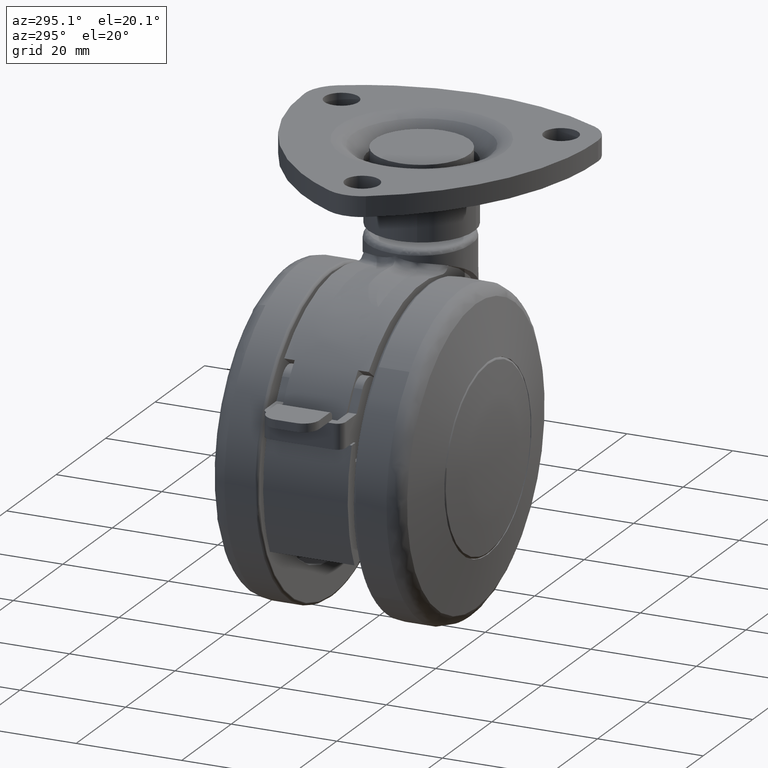
[diagram: clean part render]
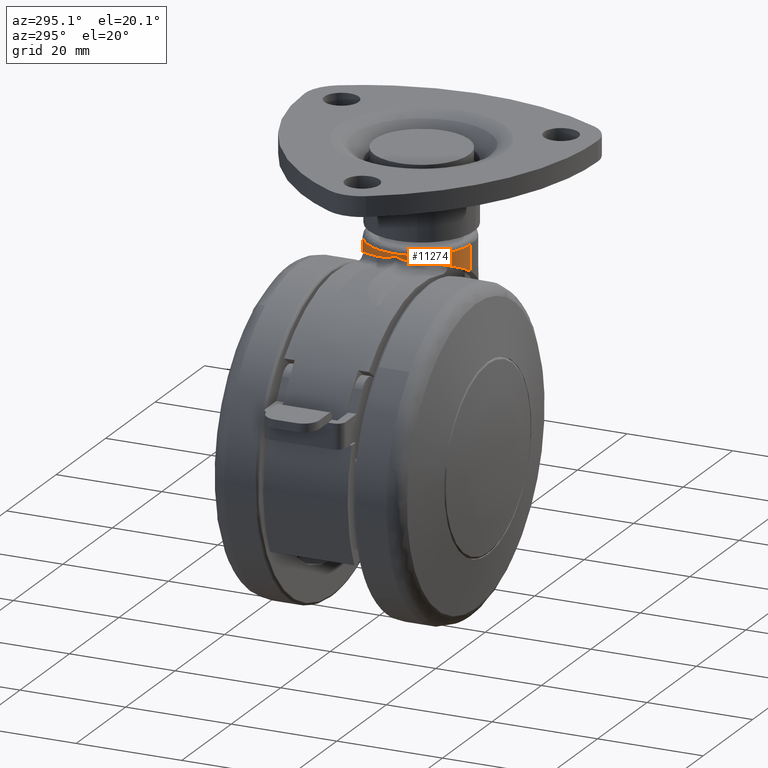
[diagram: same view with one face highlighted and labeled with its STEP entity id]
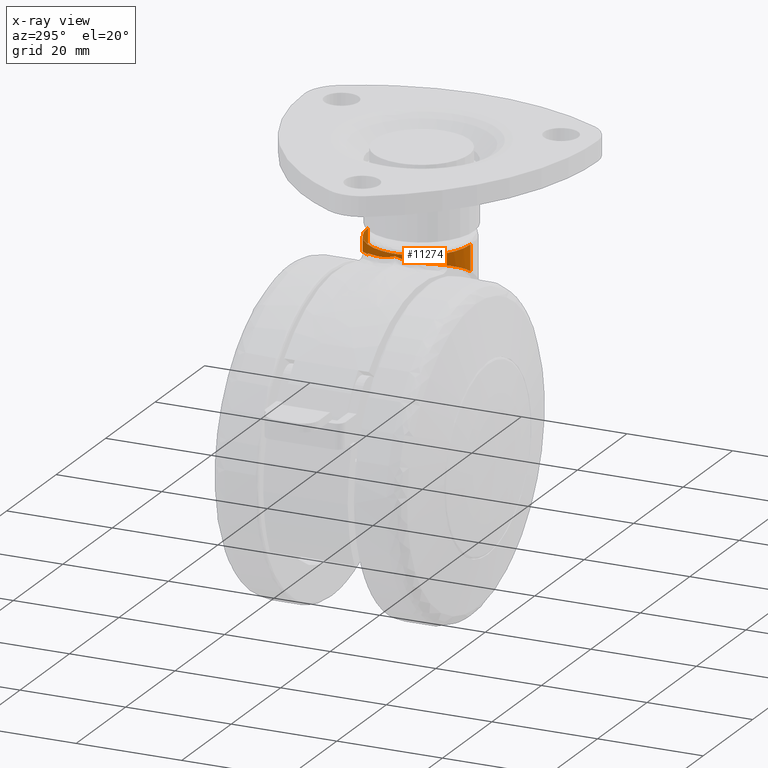
[diagram: x-ray of the same camera — body ghosted, the highlighted face saturated]
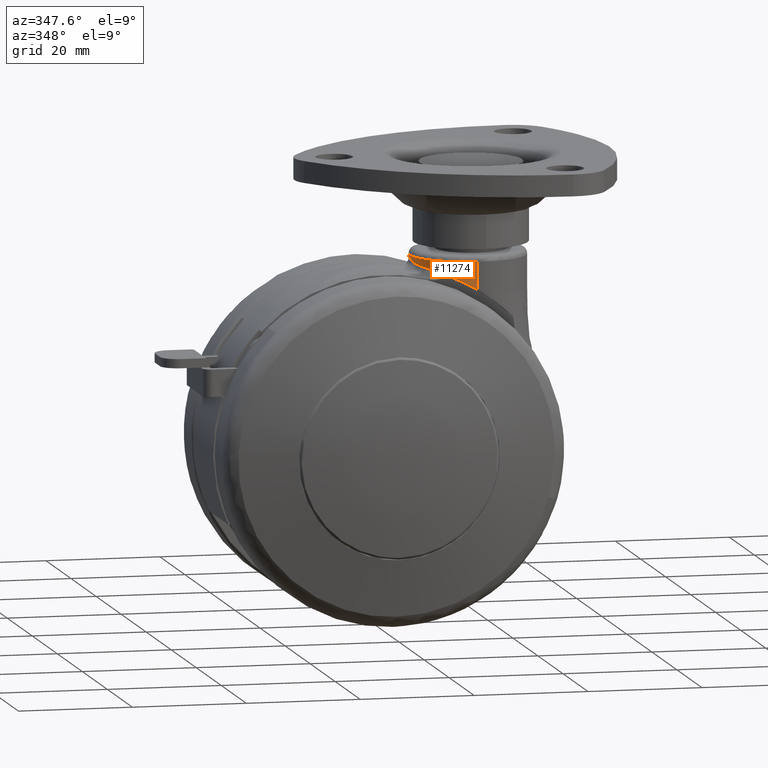
[diagram: same view with one face highlighted and labeled with its STEP entity id]
A machine part, auxiliary view. The second image highlights one B-rep face of the part: STEP entity #11274.
The next image is the same camera in x-ray: the body ghosted, the highlighted face saturated — about 0% of this face is hidden behind the body in this view.
A second angle (auxiliary view) of the same face is appended — the face is thin or edge-on in the first view.
In plain terms, the highlighted face is a freeform B-spline surface patch.
Its self-contained STEP definition (entity closure, byte-faithful):
#8522=CARTESIAN_POINT('',(6.299999999999910,1.679479E-014,31.569413359554350));
#8523=VERTEX_POINT('',#8522);
#8565=CARTESIAN_POINT('',(6.316067869316409,-0.558084660527254,31.406394739784599));
#8566=VERTEX_POINT('',#8565);
#8582=CARTESIAN_POINT('',(6.299999999999910,1.679479E-014,31.569413359554350));
#8583=CARTESIAN_POINT('',(6.299999999999910,-0.188094773179196,31.521620634496660));
#8584=CARTESIAN_POINT('',(6.305466412268796,-0.374127283095578,31.467306667285829));
#8585=CARTESIAN_POINT('',(6.316067869316409,-0.558084660527254,31.406394739784599));
#8586=QUASI_UNIFORM_CURVE('',3,(#8582,#8583,#8584,#8585),.UNSPECIFIED.,.F.,.U.);
#8587=EDGE_CURVE('',#8523,#8566,#8586,.T.);
#8614=CARTESIAN_POINT('',(7.078395394815019,-3.807226190909055,30.742212793457249));
#8615=VERTEX_POINT('',#8614);
#8631=CARTESIAN_POINT('',(6.316067869316409,-0.558084660527256,31.406394739784648));
#8632=CARTESIAN_POINT('',(6.347524740934596,-1.103926951742255,31.225655556970700));
#8633=CARTESIAN_POINT('',(6.425002353692325,-1.649283166289073,31.084029902050521));
#8634=CARTESIAN_POINT('',(6.613973821504918,-2.463775821570510,30.921079241300799));
#8635=CARTESIAN_POINT('',(6.689136250726343,-2.734675017040373,30.875015703261301));
#8636=CARTESIAN_POINT('',(6.821073418759280,-3.139659952571872,30.817063348780060));
#8637=CARTESIAN_POINT('',(6.868341959008222,-3.274640668352423,30.799580002498349));
#8638=CARTESIAN_POINT('',(6.968843395014154,-3.542408850014060,30.768274088124318));
#8639=CARTESIAN_POINT('',(7.022104685965641,-3.675318229018368,30.754427989970360));
#8640=CARTESIAN_POINT('',(7.078395394815011,-3.807226190909054,30.742212793457199));
#8641=B_SPLINE_CURVE_WITH_KNOTS('',3,(#8631,#8632,#8633,#8634,#8635,#8636,#8637,#8638,#8639,#8640),.UNSPECIFIED.,.F.,.U.,(4,2,2,2,4),(0.0,0.500000000000000,0.750000000000000,0.875000000000000,1.0),.UNSPECIFIED.);
#8642=EDGE_CURVE('',#8566,#8615,#8641,.T.);
#8677=CARTESIAN_POINT('',(6.316067869316409,0.558084660527296,31.406394739784648));
#8678=VERTEX_POINT('',#8677);
#8704=CARTESIAN_POINT('',(6.316067869316409,0.558084660527294,31.406394739784599));
#8705=CARTESIAN_POINT('',(6.305466412268795,0.374127283095609,31.467306667285829));
#8706=CARTESIAN_POINT('',(6.299999999999904,0.188094773178900,31.521620634495711));
#8707=CARTESIAN_POINT('',(6.299999999999910,1.679479E-014,31.569413359554350));
#8708=QUASI_UNIFORM_CURVE('',3,(#8704,#8705,#8706,#8707),.UNSPECIFIED.,.F.,.U.);
#8709=EDGE_CURVE('',#8678,#8523,#8708,.T.);
#8782=CARTESIAN_POINT('',(12.009282200672740,-8.841050358760171,29.120905566699051));
#8783=VERTEX_POINT('',#8782);
#8793=CARTESIAN_POINT('',(7.078395394815019,-3.807226190909055,30.742212793457249));
#8794=CARTESIAN_POINT('',(7.200229000523692,-4.092723086352845,30.715774657110170));
#8795=CARTESIAN_POINT('',(7.335169638983992,-4.371054627148991,30.685537584982161));
#8796=CARTESIAN_POINT('',(7.556903319707634,-4.777862428106570,30.633513483824920));
#8797=CARTESIAN_POINT('',(7.634098063588400,-4.911775108276372,30.615043381764469));
#8798=CARTESIAN_POINT('',(7.794699785576560,-5.175606081911697,30.575731895747740));
#8799=CARTESIAN_POINT('',(7.877724939201735,-5.304908145154446,30.554984079706479));
#8800=CARTESIAN_POINT('',(8.306039002457849,-5.938636681677326,30.445437280446001));
#8801=CARTESIAN_POINT('',(8.690597099430990,-6.405014439057752,30.339385529859630));
#8802=CARTESIAN_POINT('',(9.325872978437253,-7.045312177745724,30.144043538839419));
#8803=CARTESIAN_POINT('',(9.547429481262157,-7.248808549942805,30.072852855530911));
#8804=CARTESIAN_POINT('',(10.010044703248781,-7.635530579856953,29.916402780736892));
#8805=CARTESIAN_POINT('',(10.247583309709791,-7.815803188336362,29.832319509954839));
#8806=CARTESIAN_POINT('',(10.976185431168989,-8.318629466934688,29.561401880904310));
#8807=CARTESIAN_POINT('',(11.483524580595519,-8.603731238584016,29.355832760660459));
#8808=CARTESIAN_POINT('',(12.009282200672720,-8.841050358760171,29.120905566699051));
#8809=B_SPLINE_CURVE_WITH_KNOTS('',3,(#8793,#8794,#8795,#8796,#8797,#8798,#8799,#8800,#8801,#8802,#8803,#8804,#8805,#8806,#8807,#8808),.UNSPECIFIED.,.F.,.U.,(4,2,2,2,2,2,2,4),(0.0,0.125000000000000,0.187500000000000,0.250000000000000,0.500000000000000,0.625000000000000,0.750000000000000,1.0),.UNSPECIFIED.);
#8810=EDGE_CURVE('',#8615,#8783,#8809,.T.);
#8884=CARTESIAN_POINT('',(7.078395394815040,3.807226190909105,30.742212793457352));
#8885=VERTEX_POINT('',#8884);
#8913=CARTESIAN_POINT('',(7.078395394815040,3.807226190909105,30.742212793457352));
#8914=CARTESIAN_POINT('',(6.853314705460942,3.279786839006485,30.791055753654010));
#8915=CARTESIAN_POINT('',(6.679335788375561,2.743356895179444,30.865471713381002));
#8916=CARTESIAN_POINT('',(6.489641272198040,1.928930783767886,31.027922829943812));
#8917=CARTESIAN_POINT('',(6.438344752547978,1.655805530375691,31.090518405442300));
#8918=CARTESIAN_POINT('',(6.379096543692677,1.243966414659654,31.198555809977250));
#8919=CARTESIAN_POINT('',(6.362282539046143,1.106096727356603,31.236998985255180));
#8920=CARTESIAN_POINT('',(6.334714684319635,0.831449092811673,31.318313647878949));
#8921=CARTESIAN_POINT('',(6.323932102011982,0.694545489987199,31.361209859097251));
#8922=CARTESIAN_POINT('',(6.316067869316350,0.558084660527310,31.406394739784648));
#8923=B_SPLINE_CURVE_WITH_KNOTS('',3,(#8913,#8914,#8915,#8916,#8917,#8918,#8919,#8920,#8921,#8922),.UNSPECIFIED.,.F.,.U.,(4,2,2,2,4),(0.0,0.500000000000001,0.750000000000001,0.875000000000000,1.0),.UNSPECIFIED.);
#8924=EDGE_CURVE('',#8885,#8678,#8923,.T.);
#9048=CARTESIAN_POINT('',(12.009282200672541,8.841050358760080,29.120905566699150));
#9049=VERTEX_POINT('',#9048);
#9050=CARTESIAN_POINT('',(12.009282200672541,8.841050358760080,29.120905566699150));
#9051=CARTESIAN_POINT('',(11.483524580595359,8.603731238583922,29.355832760660562));
#9052=CARTESIAN_POINT('',(10.976185431168830,8.318629466934594,29.561401880904370));
#9053=CARTESIAN_POINT('',(10.247583309709670,7.815803188336270,29.832319509954878));
#9054=CARTESIAN_POINT('',(10.010044703248671,7.635530579856864,29.916402780736949));
#9055=CARTESIAN_POINT('',(9.547429481262068,7.248808549942724,30.072852855530929));
#9056=CARTESIAN_POINT('',(9.325872978437175,7.045312177745648,30.144043538839441));
#9057=CARTESIAN_POINT('',(8.690597099430946,6.405014439057698,30.339385529859651));
#9058=CARTESIAN_POINT('',(8.306039002457817,5.938636681677287,30.445437280446011));
#9059=CARTESIAN_POINT('',(7.877724939201722,5.304908145154433,30.554984079706490));
#9060=CARTESIAN_POINT('',(7.794699785576547,5.175606081911684,30.575731895747740));
#9061=CARTESIAN_POINT('',(7.634098063588396,4.911775108276370,30.615043381764469));
#9062=CARTESIAN_POINT('',(7.556903319707637,4.777862428106571,30.633513483824931));
#9063=CARTESIAN_POINT('',(7.335169638983999,4.371054627149007,30.685537584982161));
#9064=CARTESIAN_POINT('',(7.200229000523712,4.092723086352876,30.715774657110170));
#9065=CARTESIAN_POINT('',(7.078395394815040,3.807226190909105,30.742212793457352));
#9066=B_SPLINE_CURVE_WITH_KNOTS('',3,(#9050,#9051,#9052,#9053,#9054,#9055,#9056,#9057,#9058,#9059,#9060,#9061,#9062,#9063,#9064,#9065),.UNSPECIFIED.,.F.,.U.,(4,2,2,2,2,2,2,4),(0.0,0.250000000000000,0.375000000000000,0.500000000000000,0.750000000000000,0.812500000000000,0.875000000000000,1.0),.UNSPECIFIED.);
#9067=EDGE_CURVE('',#9049,#8885,#9066,.T.);
#10649=CARTESIAN_POINT('',(16.0,9.700000000000001,27.133927102430349));
#10650=VERTEX_POINT('',#10649);
#10651=CARTESIAN_POINT('',(12.009282200672560,8.841050358760043,29.120905566699150));
#10652=CARTESIAN_POINT('',(12.335479715066571,8.988291034241406,28.986383719686419));
#10653=CARTESIAN_POINT('',(12.664712985234090,9.115236013150181,28.844195471246511));
#10654=CARTESIAN_POINT('',(13.328041232835959,9.331254116830777,28.543753857501969));
#10655=CARTESIAN_POINT('',(13.662139654837420,9.420317845237275,28.385501410894619));
#10656=CARTESIAN_POINT('',(14.166270908845870,9.526643293676424,28.135421733310359));
#10657=CARTESIAN_POINT('',(14.334948356119559,9.557552458681046,28.049874106273890));
#10658=CARTESIAN_POINT('',(14.672652969203570,9.610273452772562,27.874709623523451));
#10659=CARTESIAN_POINT('',(14.840634543995920,9.631930941055709,27.785638259596460));
#10660=CARTESIAN_POINT('',(15.341972130579610,9.683485270213062,27.513967358250969));
#10661=CARTESIAN_POINT('',(15.672721808035710,9.699999999999999,27.326912476484711));
#10662=CARTESIAN_POINT('',(16.0,9.700000000000001,27.133927102430349));
#10663=B_SPLINE_CURVE_WITH_KNOTS('',3,(#10651,#10652,#10653,#10654,#10655,#10656,#10657,#10658,#10659,#10660,#10661,#10662),.UNSPECIFIED.,.F.,.U.,(4,2,2,2,2,4),(0.0,0.250000000000001,0.500000000000003,0.625000000000002,0.750000000000002,1.0),.UNSPECIFIED.);
#10664=EDGE_CURVE('',#9049,#10650,#10663,.T.);
#10731=CARTESIAN_POINT('',(16.0,-9.700000000000001,27.133927102430349));
#10732=VERTEX_POINT('',#10731);
#10746=CARTESIAN_POINT('',(16.0,-9.700000000000001,27.133927102430349));
#10747=CARTESIAN_POINT('',(15.917491737386939,-9.700000000000003,27.182579558701189));
#10748=CARTESIAN_POINT('',(15.834482632430850,-9.698942838183809,27.231017949413051));
#10749=CARTESIAN_POINT('',(15.668547017439300,-9.694690665393901,27.326833207678931));
#10750=CARTESIAN_POINT('',(15.419501937309230,-9.685111698112992,27.469123723419429));
#10751=CARTESIAN_POINT('',(15.170061385117860,-9.665878105240887,27.607156114105258));
#10752=CARTESIAN_POINT('',(14.670741699239111,-9.614315522659362,27.877637319929029));
#10753=CARTESIAN_POINT('',(14.337272410603701,-9.562513742944800,28.050516274214910));
#10754=CARTESIAN_POINT('',(13.669728110078310,-9.422110434482741,28.381814191879769));
#10755=CARTESIAN_POINT('',(13.335650899171370,-9.333519685375872,28.540232724987309));
#10756=CARTESIAN_POINT('',(12.918142728929149,-9.197818484633833,28.729427295742049));
#10757=CARTESIAN_POINT('',(12.834646048562380,-9.169426628719927,28.766824579445291));
#10758=CARTESIAN_POINT('',(12.667676688099890,-9.110075284119608,28.840740332075828));
#10759=CARTESIAN_POINT('',(12.584211918988490,-9.079112826172004,28.877253422627099));
#10760=CARTESIAN_POINT('',(12.335547636997029,-8.982949436473648,28.984769861462350));
#10761=CARTESIAN_POINT('',(12.171517839431520,-8.914281097756920,29.054000587923660));
#10762=CARTESIAN_POINT('',(12.009282200672770,-8.841050358760139,29.120905566699061));
#10763=B_SPLINE_CURVE_WITH_KNOTS('',3,(#10746,#10747,#10748,#10749,#10750,#10751,#10752,#10753,#10754,#10755,#10756,#10757,#10758,#10759,#10760,#10761,#10762),.UNSPECIFIED.,.F.,.U.,(4,2,1,2,2,2,2,2,4),(0.0,0.062500000000000,0.125000000000001,0.250000000000001,0.500000000000001,0.750000000000002,0.812500000000001,0.875000000000001,1.0),.UNSPECIFIED.);
#10764=EDGE_CURVE('',#10732,#8783,#10763,.T.);
#10908=CARTESIAN_POINT('',(16.0,9.700000000000001,32.0));
#10909=VERTEX_POINT('',#10908);
#10978=CARTESIAN_POINT('',(16.0,-9.700000000000001,32.0));
#10979=VERTEX_POINT('',#10978);
#11011=CARTESIAN_POINT('',(16.0,-9.700000000000001,32.0));
#11012=CARTESIAN_POINT('',(6.299999999999998,-9.700000000000003,31.999999999999996));
#11013=CARTESIAN_POINT('',(6.300000000000000,0.0,32.0));
#11014=CARTESIAN_POINT('',(6.299999999999998,9.700000000000003,31.999999999999996));
#11015=CARTESIAN_POINT('',(16.0,9.700000000000001,32.0));
#11023=(BOUNDED_CURVE()B_SPLINE_CURVE(2,(#11011,#11012,#11013,#11014,#11015),.UNSPECIFIED.,.F.,.U.)B_SPLINE_CURVE_WITH_KNOTS((3,2,3),(0.0,0.500000000000000,1.0),.UNSPECIFIED.)CURVE()GEOMETRIC_REPRESENTATION_ITEM()RATIONAL_B_SPLINE_CURVE((1.0,0.707106781186548,1.0,0.707106781186548,1.0))REPRESENTATION_ITEM(''));
#11024=EDGE_CURVE('',#10979,#10909,#11023,.T.);
#11087=CARTESIAN_POINT('',(16.0,9.700000000000001,27.133927102430349));
#11088=CARTESIAN_POINT('',(16.0,9.700000000000001,32.0));
#11089=QUASI_UNIFORM_CURVE('',1,(#11087,#11088),.UNSPECIFIED.,.F.,.U.);
#11090=EDGE_CURVE('',#10650,#10909,#11089,.T.);
#11106=CARTESIAN_POINT('',(16.0,-9.700000000000001,27.133927102430349));
#11107=CARTESIAN_POINT('',(16.0,-9.700000000000001,32.0));
#11108=QUASI_UNIFORM_CURVE('',1,(#11106,#11107),.UNSPECIFIED.,.F.,.U.);
#11109=EDGE_CURVE('',#10732,#10979,#11108,.T.);
#11243=CARTESIAN_POINT('',(16.304397628050712,-9.695222642313949,27.012275279991108));
#11244=CARTESIAN_POINT('',(16.304397628050712,-9.695222642313949,32.124693118000224));
#11245=CARTESIAN_POINT('',(6.176635928698962,-10.013200552928460,27.012275279991108));
#11246=CARTESIAN_POINT('',(6.176635928698962,-10.013200552928460,32.124693118000216));
#11247=CARTESIAN_POINT('',(6.300727423305057,0.118791763070473,27.012275279991108));
#11248=CARTESIAN_POINT('',(6.300727423305057,0.118791763070473,32.124693118000224));
#11249=CARTESIAN_POINT('',(6.424818917911152,10.250784079069401,27.012275279991108));
#11250=CARTESIAN_POINT('',(6.424818917911152,10.250784079069401,32.124693118000216));
#11251=CARTESIAN_POINT('',(16.541755027318960,9.684859394455582,27.012275279991108));
#11252=CARTESIAN_POINT('',(16.541755027318960,9.684859394455582,32.124693118000224));
#11260=(BOUNDED_SURFACE()B_SPLINE_SURFACE(1,2,((#11243,#11245,#11247,#11249,#11251),(#11244,#11246,#11248,#11250,#11252)),.UNSPECIFIED.,.F.,.F.,.U.)B_SPLINE_SURFACE_WITH_KNOTS((2,2),(3,2,3),(0.0,5.112417838009113),(0.0,16.569615961348049,33.139231922696098),.UNSPECIFIED.)GEOMETRIC_REPRESENTATION_ITEM()RATIONAL_B_SPLINE_SURFACE(((1.0,0.691513055782269,1.0,0.691513055782269,1.0),(1.0,0.691513055782269,1.0,0.691513055782269,1.0)))REPRESENTATION_ITEM('')SURFACE());
#11261=ORIENTED_EDGE('',*,*,#8642,.T.);
#11262=ORIENTED_EDGE('',*,*,#8810,.T.);
#11263=ORIENTED_EDGE('',*,*,#10764,.F.);
#11264=ORIENTED_EDGE('',*,*,#11109,.T.);
#11265=ORIENTED_EDGE('',*,*,#11024,.T.);
#11266=ORIENTED_EDGE('',*,*,#11090,.F.);
#11267=ORIENTED_EDGE('',*,*,#10664,.F.);
#11268=ORIENTED_EDGE('',*,*,#9067,.T.);
#11269=ORIENTED_EDGE('',*,*,#8924,.T.);
#11270=ORIENTED_EDGE('',*,*,#8709,.T.);
#11271=ORIENTED_EDGE('',*,*,#8587,.T.);
#11272=EDGE_LOOP('',(#11261,#11262,#11263,#11264,#11265,#11266,#11267,#11268,#11269,#11270,#11271));
#11273=FACE_OUTER_BOUND('',#11272,.T.);
#11274=ADVANCED_FACE('',(#11273),#11260,.T.);